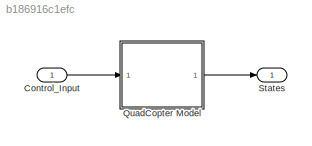
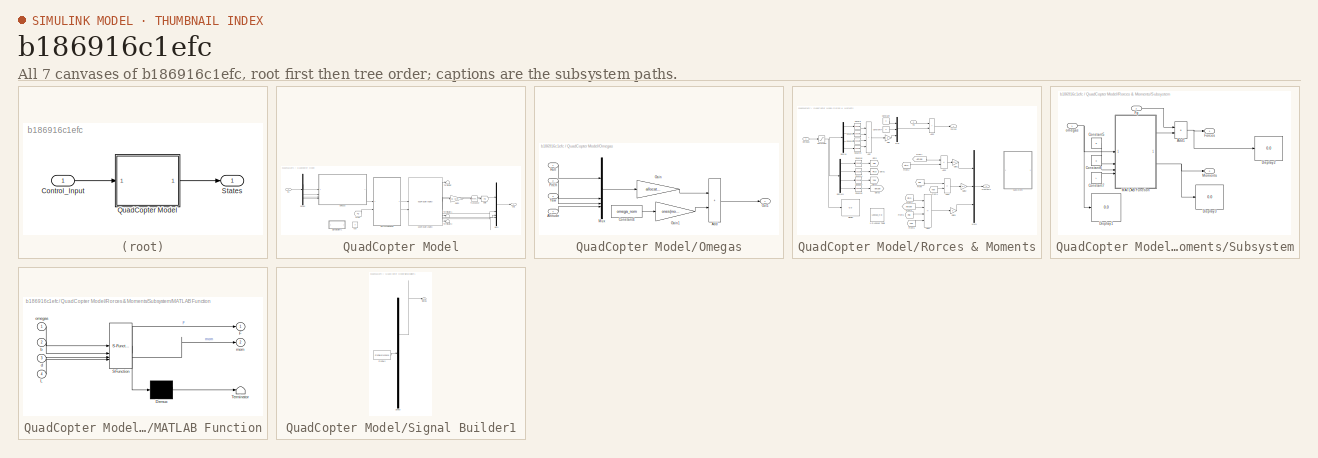
[diagram: thumbnail index - all 7 canvases of the model, root first then tree order]
MODEL slx_b186916c1efc
KIND model
CONFIG AbsTol = auto
CONFIG EnableMultiTasking = off
CONFIG FixedStep = auto
CONFIG MaxStep = auto
CONFIG MinStep = auto
CONFIG RelTol = 1e-3
CONFIG SampleTimeConstraint = Unconstrained
CONFIG SolverName = VariableStepAuto
CONFIG StartTime = 0.0
CONFIG StopTime = 10.0
BLOCK [Inport] Control_Input
BLOCK [SubSystem] QuadCopter Model
BLOCK [Reference] QuadCopter Model/6DOF (Euler Angles)  REF=shared6dof/6DOF (Euler Angles)
  LibrarySourceBlock = aerolib6dof2/6DOF (Euler Angles)
  SourceBlock = shared6dof/6DOF (Euler Angles)
  SourceType = 6DOF EoM (Body Axis)
BLOCK [Demux] QuadCopter Model/Demux
BLOCK [From] QuadCopter Model/From
  GotoTag = Fg
BLOCK [Gain] QuadCopter Model/Gain2
  Gain = [0; 0;m*g]
  Multiplication = Matrix(u*K)
  NameLocation = top
BLOCK [Goto] QuadCopter Model/Goto
  GotoTag = Fg
BLOCK [Inport] QuadCopter Model/In1
BLOCK [Mux] QuadCopter Model/Mux1
  DisplayOption = bar
BLOCK [SubSystem] QuadCopter Model/Omegas
BLOCK [Sum] QuadCopter Model/Omegas/Add
  IconShape = rectangular
BLOCK [Inport] QuadCopter Model/Omegas/Altitude 
  Port = 4
BLOCK [Constant] QuadCopter Model/Omegas/Constant4
  Value = omega_nom
BLOCK [Gain] QuadCopter Model/Omegas/Gain
  Gain = allocation_matrix
  Multiplication = Matrix(K*u)
BLOCK [Gain] QuadCopter Model/Omegas/Gain1
  Gain = ones(motors_no,1)
BLOCK [Mux] QuadCopter Model/Omegas/Mux
  DisplayOption = bar
BLOCK [Outport] QuadCopter Model/Omegas/Out1
BLOCK [Inport] QuadCopter Model/Omegas/Pitch 
  Port = 2
BLOCK [Inport] QuadCopter Model/Omegas/Roll 
BLOCK [Inport] QuadCopter Model/Omegas/Yaw 
  Port = 3
BLOCK [Outport] QuadCopter Model/Out1
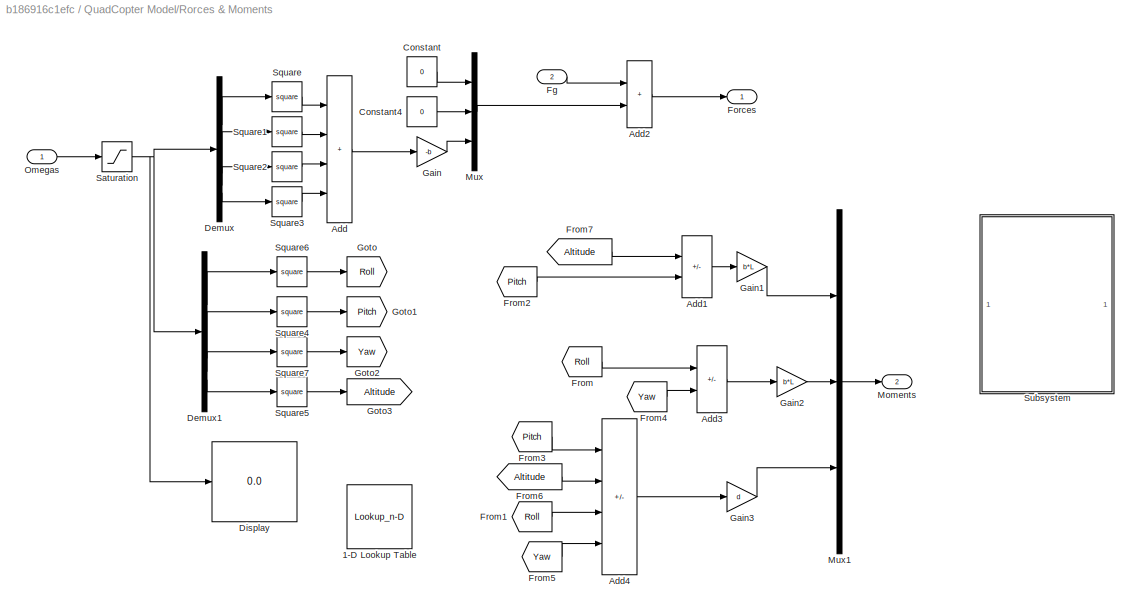
BLOCK [SubSystem] QuadCopter Model/Rorces & Moments
BLOCK [Lookup_n-D] QuadCopter Model/Rorces & Moments/1-D Lookup Table
  BreakpointsForDimension1 = [0 omega_nom sqrt(2)*omega_nom]
  Commented = on
  InputPortMap = u0
  InternalRulePriority = Speed
  NumberOfTableDimensions = 1
  RndMeth = Simplest
  Table = [-1 0 1]
BLOCK [Sum] QuadCopter Model/Rorces & Moments/Add
  IconShape = rectangular
  Inputs = ++++
BLOCK [Sum] QuadCopter Model/Rorces & Moments/Add1
  IconShape = rectangular
  Inputs = +-
BLOCK [Sum] QuadCopter Model/Rorces & Moments/Add2
  IconShape = rectangular
BLOCK [Sum] QuadCopter Model/Rorces & Moments/Add3
  IconShape = rectangular
  Inputs = +-
BLOCK [Sum] QuadCopter Model/Rorces & Moments/Add4
  IconShape = rectangular
  Inputs = --++
BLOCK [Constant] QuadCopter Model/Rorces & Moments/Constant
  Value = 0
BLOCK [Constant] QuadCopter Model/Rorces & Moments/Constant4
  Value = 0
BLOCK [Demux] QuadCopter Model/Rorces & Moments/Demux
BLOCK [Demux] QuadCopter Model/Rorces & Moments/Demux1
BLOCK [Display] QuadCopter Model/Rorces & Moments/Display
  Decimation = 1
BLOCK [Inport] QuadCopter Model/Rorces & Moments/Fg
  Port = 2
BLOCK [Outport] QuadCopter Model/Rorces & Moments/Forces
BLOCK [From] QuadCopter Model/Rorces & Moments/From
  GotoTag = Roll
BLOCK [From] QuadCopter Model/Rorces & Moments/From1
  GotoTag = Roll
BLOCK [From] QuadCopter Model/Rorces & Moments/From2
  GotoTag = Pitch
BLOCK [From] QuadCopter Model/Rorces & Moments/From3
  GotoTag = Pitch
BLOCK [From] QuadCopter Model/Rorces & Moments/From4
  GotoTag = Yaw
BLOCK [From] QuadCopter Model/Rorces & Moments/From5
  GotoTag = Yaw
BLOCK [From] QuadCopter Model/Rorces & Moments/From6
  GotoTag = Altitude
BLOCK [From] QuadCopter Model/Rorces & Moments/From7
  GotoTag = Altitude
BLOCK [Gain] QuadCopter Model/Rorces & Moments/Gain
  Gain = -b
  Multiplication = Matrix(K*u)
BLOCK [Gain] QuadCopter Model/Rorces & Moments/Gain1
  Gain = b*L
BLOCK [Gain] QuadCopter Model/Rorces & Moments/Gain2
  Gain = b*L
BLOCK [Gain] QuadCopter Model/Rorces & Moments/Gain3
  Gain = d
BLOCK [Goto] QuadCopter Model/Rorces & Moments/Goto
  GotoTag = Roll
BLOCK [Goto] QuadCopter Model/Rorces & Moments/Goto1
  GotoTag = Pitch
BLOCK [Goto] QuadCopter Model/Rorces & Moments/Goto2
  GotoTag = Yaw
BLOCK [Goto] QuadCopter Model/Rorces & Moments/Goto3
  GotoTag = Altitude
BLOCK [Outport] QuadCopter Model/Rorces & Moments/Moments
  Port = 2
BLOCK [Mux] QuadCopter Model/Rorces & Moments/Mux
  DisplayOption = bar
  Inputs = 3
BLOCK [Mux] QuadCopter Model/Rorces & Moments/Mux1
  DisplayOption = bar
  Inputs = 3
BLOCK [Inport] QuadCopter Model/Rorces & Moments/Omegas
BLOCK [Saturate] QuadCopter Model/Rorces & Moments/Saturation
  UpperLimit = omega_max
BLOCK [Math] QuadCopter Model/Rorces & Moments/Square
  Operator = square
BLOCK [Math] QuadCopter Model/Rorces & Moments/Square1
  Operator = square
BLOCK [Math] QuadCopter Model/Rorces & Moments/Square2
  Operator = square
BLOCK [Math] QuadCopter Model/Rorces & Moments/Square3
  Operator = square
BLOCK [Math] QuadCopter Model/Rorces & Moments/Square4
  Operator = square
BLOCK [Math] QuadCopter Model/Rorces & Moments/Square5
  Operator = square
BLOCK [Math] QuadCopter Model/Rorces & Moments/Square6
  Operator = square
BLOCK [Math] QuadCopter Model/Rorces & Moments/Square7
  Operator = square
BLOCK [SubSystem] QuadCopter Model/Rorces & Moments/Subsystem
  Commented = on
BLOCK [Sum] QuadCopter Model/Rorces & Moments/Subsystem/Add1
  IconShape = rectangular
BLOCK [Constant] QuadCopter Model/Rorces & Moments/Subsystem/Constant5
  Value = b
BLOCK [Constant] QuadCopter Model/Rorces & Moments/Subsystem/Constant6
  Value = d
BLOCK [Constant] QuadCopter Model/Rorces & Moments/Subsystem/Constant7
  Value = L
BLOCK [Display] QuadCopter Model/Rorces & Moments/Subsystem/Display1
  Decimation = 1
BLOCK [Display] QuadCopter Model/Rorces & Moments/Subsystem/Display2
  Decimation = 1
BLOCK [Display] QuadCopter Model/Rorces & Moments/Subsystem/Display3
  Decimation = 1
BLOCK [Inport] QuadCopter Model/Rorces & Moments/Subsystem/Fg
  Port = 2
BLOCK [Outport] QuadCopter Model/Rorces & Moments/Subsystem/Forces
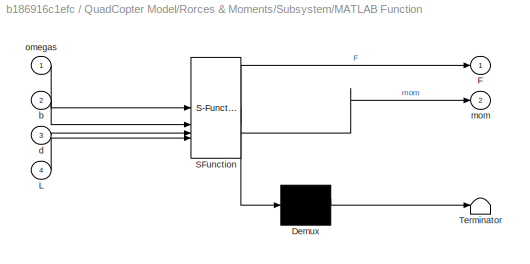
BLOCK [SubSystem] QuadCopter Model/Rorces & Moments/Subsystem/MATLAB Function
  ErrorFcn = Stateflow.Translate.translate
  PermitHierarchicalResolution = ExplicitOnly
  SFBlockType = MATLAB Function
  TreatAsAtomicUnit = on
BLOCK [Demux] QuadCopter Model/Rorces & Moments/Subsystem/MATLAB Function/ Demux 
  Outputs = 1
BLOCK [S-Function] QuadCopter Model/Rorces & Moments/Subsystem/MATLAB Function/ SFunction 
  EnableBusSupport = on
  FunctionName = sf_sfun
  PortCounts = [4 3]
  SFcnIsStateOwnerBlock = off
  SFunctionDeploymentMode = off
  Tag = Stateflow S-Function 2
BLOCK [Terminator] QuadCopter Model/Rorces & Moments/Subsystem/MATLAB Function/ Terminator 
BLOCK [Outport] QuadCopter Model/Rorces & Moments/Subsystem/MATLAB Function/F
BLOCK [Inport] QuadCopter Model/Rorces & Moments/Subsystem/MATLAB Function/L
  Port = 4
BLOCK [Inport] QuadCopter Model/Rorces & Moments/Subsystem/MATLAB Function/b
  Port = 2
BLOCK [Inport] QuadCopter Model/Rorces & Moments/Subsystem/MATLAB Function/d
  Port = 3
BLOCK [Outport] QuadCopter Model/Rorces & Moments/Subsystem/MATLAB Function/mom
  Port = 2
BLOCK [Inport] QuadCopter Model/Rorces & Moments/Subsystem/MATLAB Function/omegas
BLOCK [Outport] QuadCopter Model/Rorces & Moments/Subsystem/Moments
  Port = 2
BLOCK [Inport] QuadCopter Model/Rorces & Moments/Subsystem/omegas
BLOCK [SubSystem] QuadCopter Model/Signal Builder1
  ClipboardFcn = sigbuilder_block('clipboard');
  CloseFcn = sigbuilder_block('close');
  Commented = on
  ContinueFcn = sigbuilder_block('continue');
  CopyFcn = sigbuilder_block('copy');
  DeleteFcn = sigbuilder_block('delete');
  LoadFcn = sigbuilder_block('load');
  MaskHideContents = on
  ModelCloseFcn = sigbuilder_block('modelClose');
  NameChangeFcn = sigbuilder_block('namechange');
  OpenFcn = sigbuilder_block('open',[394.2 60 550.8 400.2 ]);
  PauseFcn = sigbuilder_block('pause');
  PreSaveFcn = sigbuilder_block('preSave');
  StartFcn = sigbuilder_block('start');
  StopFcn = sigbuilder_block('stop');
  Tag = STV Subsys
BLOCK [Demux] QuadCopter Model/Signal Builder1/Demux
  DisplayOption = none
  Outputs = 1
  Tag = STV Demux
BLOCK [FromWorkspace] QuadCopter Model/Signal Builder1/FromWs
  Tag = STV FromWs
  VariableName = tuvar
BLOCK [Outport] QuadCopter Model/Signal Builder1/Signal 1
  Tag = STV Outport
BLOCK [Terminator] QuadCopter Model/Terminator
BLOCK [Terminator] QuadCopter Model/Terminator1
BLOCK [Terminator] QuadCopter Model/Terminator2
BLOCK [Math] QuadCopter Model/Transpose
  Operator = transpose
BLOCK [Constant] QuadCopter Model/Yaw
  Commented = on
  NameLocation = left
  Value = 0
BLOCK [Outport] States
LINE Control_Input:1 -> QuadCopter Model:1
LINE QuadCopter Model/6DOF (Euler Angles):1 -> QuadCopter Model/Terminator:1
LINE QuadCopter Model/6DOF (Euler Angles):2 -> QuadCopter Model/Mux1:1
LINE QuadCopter Model/6DOF (Euler Angles):3 -> QuadCopter Model/Mux1:2
LINE QuadCopter Model/6DOF (Euler Angles):4 -> QuadCopter Model/Gain2:1
LINE QuadCopter Model/6DOF (Euler Angles):5 -> QuadCopter Model/Mux1:3
LINE QuadCopter Model/6DOF (Euler Angles):6 -> QuadCopter Model/Mux1:4
LINE QuadCopter Model/6DOF (Euler Angles):7 -> QuadCopter Model/Terminator1:1
LINE QuadCopter Model/6DOF (Euler Angles):8 -> QuadCopter Model/Terminator2:1
LINE QuadCopter Model/Demux:1 -> QuadCopter Model/Omegas:1
LINE QuadCopter Model/Demux:2 -> QuadCopter Model/Omegas:2
LINE QuadCopter Model/Demux:3 -> QuadCopter Model/Omegas:3
LINE QuadCopter Model/Demux:4 -> QuadCopter Model/Omegas:4
LINE QuadCopter Model/From:1 -> QuadCopter Model/Rorces & Moments:2
LINE QuadCopter Model/Gain2:1 -> QuadCopter Model/Transpose:1
LINE QuadCopter Model/In1:1 -> QuadCopter Model/Demux:1
LINE QuadCopter Model/Mux1:1 -> QuadCopter Model/Out1:1
LINE QuadCopter Model/Omegas/Add:1 -> QuadCopter Model/Omegas/Out1:1
LINE QuadCopter Model/Omegas/Altitude :1 -> QuadCopter Model/Omegas/Mux:4
LINE QuadCopter Model/Omegas/Constant4:1 -> QuadCopter Model/Omegas/Gain1:1
LINE QuadCopter Model/Omegas/Gain1:1 -> QuadCopter Model/Omegas/Add:2
LINE QuadCopter Model/Omegas/Gain:1 -> QuadCopter Model/Omegas/Add:1
LINE QuadCopter Model/Omegas/Mux:1 -> QuadCopter Model/Omegas/Gain:1
LINE QuadCopter Model/Omegas/Pitch :1 -> QuadCopter Model/Omegas/Mux:2
LINE QuadCopter Model/Omegas/Roll :1 -> QuadCopter Model/Omegas/Mux:1
LINE QuadCopter Model/Omegas/Yaw :1 -> QuadCopter Model/Omegas/Mux:3
LINE QuadCopter Model/Omegas:1 -> QuadCopter Model/Rorces & Moments:1
LINE QuadCopter Model/Rorces & Moments/Add1:1 -> QuadCopter Model/Rorces & Moments/Gain1:1
LINE QuadCopter Model/Rorces & Moments/Add2:1 -> QuadCopter Model/Rorces & Moments/Forces:1
LINE QuadCopter Model/Rorces & Moments/Add3:1 -> QuadCopter Model/Rorces & Moments/Gain2:1
LINE QuadCopter Model/Rorces & Moments/Add4:1 -> QuadCopter Model/Rorces & Moments/Gain3:1
LINE QuadCopter Model/Rorces & Moments/Add:1 -> QuadCopter Model/Rorces & Moments/Gain:1
LINE QuadCopter Model/Rorces & Moments/Constant4:1 -> QuadCopter Model/Rorces & Moments/Mux:2
LINE QuadCopter Model/Rorces & Moments/Constant:1 -> QuadCopter Model/Rorces & Moments/Mux:1
LINE QuadCopter Model/Rorces & Moments/Demux1:1 -> QuadCopter Model/Rorces & Moments/Square6:1
LINE QuadCopter Model/Rorces & Moments/Demux1:2 -> QuadCopter Model/Rorces & Moments/Square4:1
LINE QuadCopter Model/Rorces & Moments/Demux1:3 -> QuadCopter Model/Rorces & Moments/Square7:1
LINE QuadCopter Model/Rorces & Moments/Demux1:4 -> QuadCopter Model/Rorces & Moments/Square5:1
LINE QuadCopter Model/Rorces & Moments/Demux:1 -> QuadCopter Model/Rorces & Moments/Square:1
LINE QuadCopter Model/Rorces & Moments/Demux:2 -> QuadCopter Model/Rorces & Moments/Square1:1
LINE QuadCopter Model/Rorces & Moments/Demux:3 -> QuadCopter Model/Rorces & Moments/Square2:1
LINE QuadCopter Model/Rorces & Moments/Demux:4 -> QuadCopter Model/Rorces & Moments/Square3:1
LINE QuadCopter Model/Rorces & Moments/Fg:1 -> QuadCopter Model/Rorces & Moments/Add2:1
LINE QuadCopter Model/Rorces & Moments/From1:1 -> QuadCopter Model/Rorces & Moments/Add4:3
LINE QuadCopter Model/Rorces & Moments/From2:1 -> QuadCopter Model/Rorces & Moments/Add1:2
LINE QuadCopter Model/Rorces & Moments/From3:1 -> QuadCopter Model/Rorces & Moments/Add4:1
LINE QuadCopter Model/Rorces & Moments/From4:1 -> QuadCopter Model/Rorces & Moments/Add3:2
LINE QuadCopter Model/Rorces & Moments/From5:1 -> QuadCopter Model/Rorces & Moments/Add4:4
LINE QuadCopter Model/Rorces & Moments/From6:1 -> QuadCopter Model/Rorces & Moments/Add4:2
LINE QuadCopter Model/Rorces & Moments/From7:1 -> QuadCopter Model/Rorces & Moments/Add1:1
LINE QuadCopter Model/Rorces & Moments/From:1 -> QuadCopter Model/Rorces & Moments/Add3:1
LINE QuadCopter Model/Rorces & Moments/Gain1:1 -> QuadCopter Model/Rorces & Moments/Mux1:1
LINE QuadCopter Model/Rorces & Moments/Gain2:1 -> QuadCopter Model/Rorces & Moments/Mux1:2
LINE QuadCopter Model/Rorces & Moments/Gain3:1 -> QuadCopter Model/Rorces & Moments/Mux1:3
LINE QuadCopter Model/Rorces & Moments/Gain:1 -> QuadCopter Model/Rorces & Moments/Mux:3
LINE QuadCopter Model/Rorces & Moments/Mux1:1 -> QuadCopter Model/Rorces & Moments/Moments:1
LINE QuadCopter Model/Rorces & Moments/Mux:1 -> QuadCopter Model/Rorces & Moments/Add2:2
LINE QuadCopter Model/Rorces & Moments/Omegas:1 -> QuadCopter Model/Rorces & Moments/Saturation:1
NET QuadCopter Model/Rorces & Moments/Saturation:1 -> QuadCopter Model/Rorces & Moments/Demux1:1, QuadCopter Model/Rorces & Moments/Demux:1, QuadCopter Model/Rorces & Moments/Display:1
LINE QuadCopter Model/Rorces & Moments/Square1:1 -> QuadCopter Model/Rorces & Moments/Add:2
LINE QuadCopter Model/Rorces & Moments/Square2:1 -> QuadCopter Model/Rorces & Moments/Add:3
LINE QuadCopter Model/Rorces & Moments/Square3:1 -> QuadCopter Model/Rorces & Moments/Add:4
LINE QuadCopter Model/Rorces & Moments/Square4:1 -> QuadCopter Model/Rorces & Moments/Goto1:1
LINE QuadCopter Model/Rorces & Moments/Square5:1 -> QuadCopter Model/Rorces & Moments/Goto3:1
LINE QuadCopter Model/Rorces & Moments/Square6:1 -> QuadCopter Model/Rorces & Moments/Goto:1
LINE QuadCopter Model/Rorces & Moments/Square7:1 -> QuadCopter Model/Rorces & Moments/Goto2:1
LINE QuadCopter Model/Rorces & Moments/Square:1 -> QuadCopter Model/Rorces & Moments/Add:1
NET QuadCopter Model/Rorces & Moments/Subsystem/Add1:1 -> QuadCopter Model/Rorces & Moments/Subsystem/Display2:1, QuadCopter Model/Rorces & Moments/Subsystem/Forces:1
LINE QuadCopter Model/Rorces & Moments/Subsystem/Constant5:1 -> QuadCopter Model/Rorces & Moments/Subsystem/MATLAB Function:2
LINE QuadCopter Model/Rorces & Moments/Subsystem/Constant6:1 -> QuadCopter Model/Rorces & Moments/Subsystem/MATLAB Function:3
LINE QuadCopter Model/Rorces & Moments/Subsystem/Constant7:1 -> QuadCopter Model/Rorces & Moments/Subsystem/MATLAB Function:4
LINE QuadCopter Model/Rorces & Moments/Subsystem/Fg:1 -> QuadCopter Model/Rorces & Moments/Subsystem/Add1:1
LINE QuadCopter Model/Rorces & Moments/Subsystem/MATLAB Function:1 -> QuadCopter Model/Rorces & Moments/Subsystem/Add1:2
NET QuadCopter Model/Rorces & Moments/Subsystem/MATLAB Function:2 -> QuadCopter Model/Rorces & Moments/Subsystem/Display3:1, QuadCopter Model/Rorces & Moments/Subsystem/Moments:1
NET QuadCopter Model/Rorces & Moments/Subsystem/omegas:1 -> QuadCopter Model/Rorces & Moments/Subsystem/Display1:1, QuadCopter Model/Rorces & Moments/Subsystem/MATLAB Function:1
LINE QuadCopter Model/Rorces & Moments:1 -> QuadCopter Model/6DOF (Euler Angles):1
LINE QuadCopter Model/Rorces & Moments:2 -> QuadCopter Model/6DOF (Euler Angles):2
LINE QuadCopter Model/Transpose:1 -> QuadCopter Model/Goto:1
LINE QuadCopter Model:1 -> States:1
note: NET lines group one-source signal fan-out (src -> all destinations, sorted); 1:1 wires keep LINE
CHART QuadCopter Model/Rorces & Moments/Subsystem/MATLAB Function states=1 transitions=1
  STATE_LABEL 'eML_blk_kernel()'
  STATE_LABEL 'SCRIPT:\nfunction [F,mom] = fcn(omegas,b,d,L)\nw1= omegas(1);\nw2= omegas(2);\nw3= omegas(3);\nw4= omegas(4);\n\n%deltas (roll,pitch,yaw,thrust)\nF = [0 0 -b*(w1^2 + w2^2 +w3^2 + w4^2)];\nmom = [b*L*(w4^2-w2^2)...\n    b*L*(w1^2-w3^2)...\n    d*(-w2^2-w4^2+w1^2+w3^2)];\n'
CHART  states=0 transitions=0
